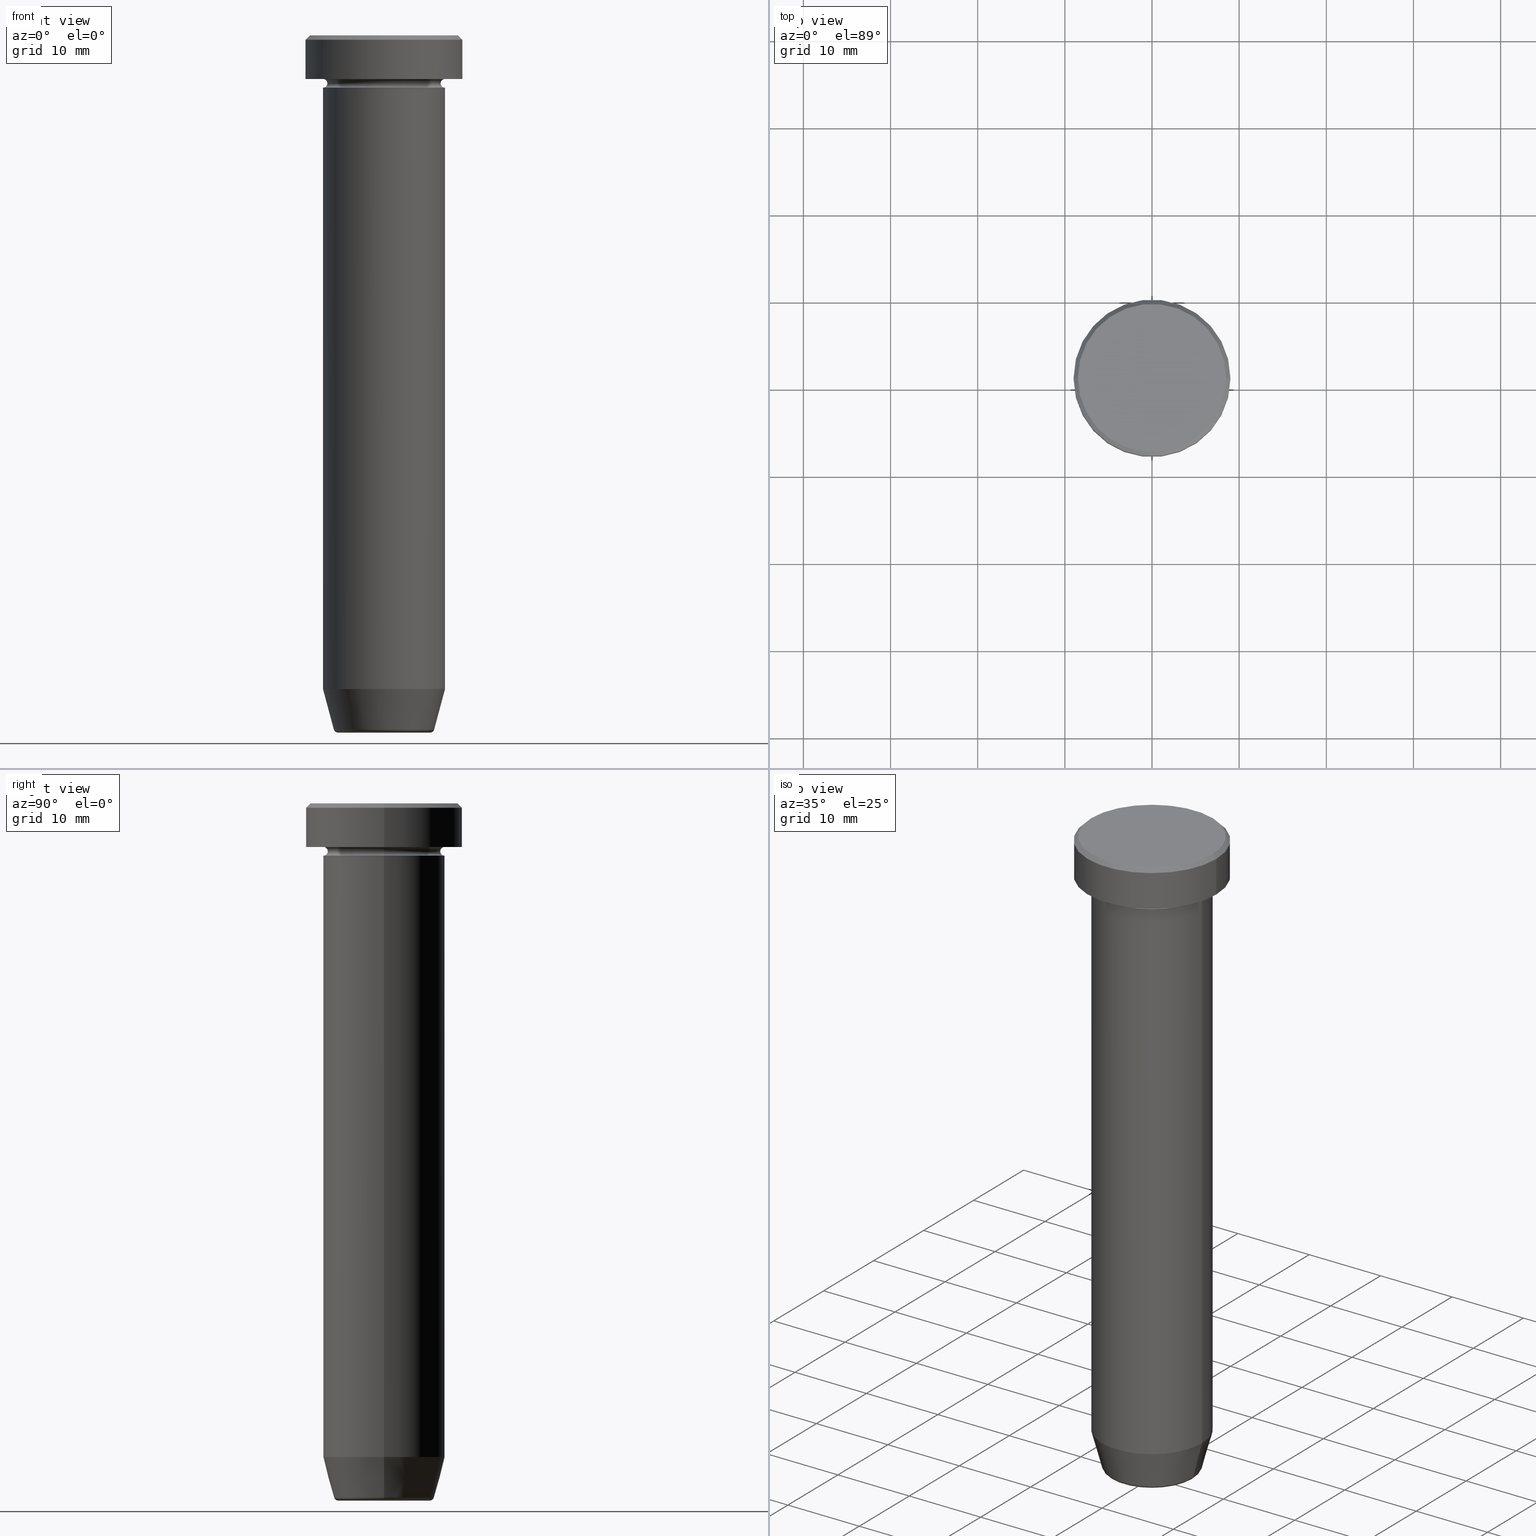
[diagram: canonical four-view strip — front | top / right | iso, engineering-drawing reading convention]
A machine part, canonical four-view strip (front | top / right | iso — engineering-drawing reading convention). The complete STEP part file that produces these views, byte-faithful:
ISO-10303-21;
HEADER;
FILE_DESCRIPTION (( 'STEP AP203' ),
    '1' );
FILE_NAME ('fd89.STEP',
    '2024-01-02T23:13:30',
    ( '' ),
    ( '' ),
    'SwSTEP 2.0',
    'SolidWorks 2019',
    '' );
FILE_SCHEMA (( 'CONFIG_CONTROL_DESIGN' ));
ENDSEC;

DATA;
#1 = CYLINDRICAL_SURFACE ( 'NONE', #584, 7.000000000000000000 ) ;
#2 = ORIENTED_EDGE ( 'NONE', *, *, #304, .F. ) ;
#3 = DIRECTION ( 'NONE',  ( 1.000000000000000000, 0.000000000000000000, 0.000000000000000000 ) ) ;
#4 = DIRECTION ( 'NONE',  ( 0.000000000000000000, 0.000000000000000000, -1.000000000000000000 ) ) ;
#5 = CIRCLE ( 'NONE', #352, 5.276590543854903004 ) ;
#6 = CARTESIAN_POINT ( 'NONE',  ( -9.000000000000000000, 1.102182119232617714E-15, -0.5000000000000023315 ) ) ;
#7 = VECTOR ( 'NONE', #334, 1000.000000000000000 ) ;
#8 = DATE_AND_TIME ( #376, #502 ) ;
#9 = DIRECTION ( 'NONE',  ( 0.000000000000000000, 0.000000000000000000, -1.000000000000000000 ) ) ;
#10 = VERTEX_POINT ( 'NONE', #6 ) ;
#11 = DESIGN_CONTEXT ( 'detailed design', #504, 'design' ) ;
#12 = CARTESIAN_POINT ( 'NONE',  ( 0.000000000000000000, 0.000000000000000000, -79.62940952255127058 ) ) ;
#13 = ORIENTED_EDGE ( 'NONE', *, *, #123, .F. ) ;
#14 = CALENDAR_DATE ( 2024, 3, 1 ) ;
#15 = FACE_OUTER_BOUND ( 'NONE', #245, .T. ) ;
#16 = ORIENTED_EDGE ( 'NONE', *, *, #512, .F. ) ;
#17 = CARTESIAN_POINT ( 'NONE',  ( 0.000000000000000000, 0.000000000000000000, -6.000000000000000000 ) ) ;
#18 = AXIS2_PLACEMENT_3D ( 'NONE', #34, #161, #486 ) ;
#19 = AXIS2_PLACEMENT_3D ( 'NONE', #429, #476, #383 ) ;
#20 = CARTESIAN_POINT ( 'NONE',  ( 0.000000000000000000, 0.000000000000000000, -80.00000000000000000 ) ) ;
#21 = CARTESIAN_POINT ( 'NONE',  ( -7.000000000000000000, 8.572527594031473190E-16, -20.00000000000000000 ) ) ;
#22 = CARTESIAN_POINT ( 'NONE',  ( -5.759553456999437770, 7.812973149831955717E-16, -79.62940952255127058 ) ) ;
#23 = VERTEX_POINT ( 'NONE', #236 ) ;
#24 = ADVANCED_FACE ( 'NONE', ( #182 ), #1, .T. ) ;
#25 = CIRCLE ( 'NONE', #556, 5.759553456999437770 ) ;
#26 = CC_DESIGN_APPROVAL ( #311, ( #150 ) ) ;
#27 = DATE_AND_TIME ( #266, #357 ) ;
#28 = PERSON ( 'NEUR�EN�', 'NEUR�EN�', 'NEUR�EN�', ('NEUR�EN�'), ('NEUR�EN�'), ('NEUR�EN�') ) ;
#29 = EDGE_CURVE ( 'NONE', #141, #203, #477, .T. ) ;
#30 = PERSON_AND_ORGANIZATION ( #28, #296 ) ;
#31 = TOROIDAL_SURFACE ( 'NONE', #207, 7.000000000000000888, 0.5000000000000000000 ) ;
#32 = ADVANCED_FACE ( 'NONE', ( #113 ), #57, .T. ) ;
#33 = DIRECTION ( 'NONE',  ( 0.000000000000000000, 0.000000000000000000, -1.000000000000000000 ) ) ;
#34 = CARTESIAN_POINT ( 'NONE',  ( 0.000000000000000000, 3.673940397442059178E-15, -80.00000000000000000 ) ) ;
#35 = EDGE_LOOP ( 'NONE', ( #157, #473, #569, #564 ) ) ;
#36 = EDGE_LOOP ( 'NONE', ( #16, #149, #360, #342 ) ) ;
#37 = FACE_OUTER_BOUND ( 'NONE', #200, .T. ) ;
#38 = CARTESIAN_POINT ( 'NONE',  ( -9.000000000000000000, 1.102182119232617714E-15, 0.000000000000000000 ) ) ;
#39 = EDGE_LOOP ( 'NONE', ( #310, #87, #389, #344 ) ) ;
#40 = PLANE ( 'NONE',  #346 ) ;
#41 = CARTESIAN_POINT ( 'NONE',  ( 0.000000000000000000, -3.469446951953614189E-15, -20.00000000000000000 ) ) ;
#42 = ORIENTED_EDGE ( 'NONE', *, *, #578, .T. ) ;
#43 = DIRECTION ( 'NONE',  ( 1.224646799147353207E-16, 1.000000000000000000, 0.000000000000000000 ) ) ;
#44 = CALENDAR_DATE ( 2024, 3, 1 ) ;
#45 = EDGE_CURVE ( 'NONE', #203, #368, #566, .T. ) ;
#46 = DIRECTION ( 'NONE',  ( 1.000000000000000000, 0.000000000000000000, 0.000000000000000000 ) ) ;
#47 = AXIS2_PLACEMENT_3D ( 'NONE', #523, #112, #480 ) ;
#48 = CIRCLE ( 'NONE', #462, 7.000000000000000000 ) ;
#49 = DIRECTION ( 'NONE',  ( -0.000000000000000000, -0.000000000000000000, 1.000000000000000000 ) ) ;
#50 = ORIENTED_EDGE ( 'NONE', *, *, #385, .F. ) ;
#51 = CARTESIAN_POINT ( 'NONE',  ( 0.000000000000000000, 0.000000000000000000, -20.00000000000000000 ) ) ;
#52 = COORDINATED_UNIVERSAL_TIME_OFFSET ( 1, 0, .AHEAD. ) ;
#53 = CARTESIAN_POINT ( 'NONE',  ( 0.000000000000000000, 0.000000000000000000, -20.00000000000000000 ) ) ;
#54 = ADVANCED_FACE ( 'NONE', ( #392 ), #436, .F. ) ;
#55 = DIRECTION ( 'NONE',  ( 0.000000000000000000, -1.000000000000000000, 0.000000000000000000 ) ) ;
#56 = DIRECTION ( 'NONE',  ( -0.000000000000000000, -0.000000000000000000, 1.000000000000000000 ) ) ;
#57 = CONICAL_SURFACE ( 'NONE', #126, 5.660254037844383745, 0.2617993877991497409 ) ;
#58 = VECTOR ( 'NONE', #453, 1000.000000000000000 ) ;
#59 = DIRECTION ( 'NONE',  ( -0.000000000000000000, -1.000000000000000000, -0.000000000000000000 ) ) ;
#60 = VERTEX_POINT ( 'NONE', #22 ) ;
#61 = DIRECTION ( 'NONE',  ( -1.000000000000000000, 0.000000000000000000, 0.000000000000000000 ) ) ;
#62 = ORIENTED_EDGE ( 'NONE', *, *, #448, .F. ) ;
#63 = PERSON_AND_ORGANIZATION ( #28, #296 ) ;
#64 = EDGE_CURVE ( 'NONE', #89, #401, #191, .T. ) ;
#65 = ORIENTED_EDGE ( 'NONE', *, *, #474, .F. ) ;
#66 = DIRECTION ( 'NONE',  ( 1.000000000000000000, 0.000000000000000000, 0.000000000000000000 ) ) ;
#67 = UNCERTAINTY_MEASURE_WITH_UNIT (LENGTH_MEASURE( 1.000000000000000082E-05 ), #447, 'distance_accuracy_value', 'NONE');
#68 = EDGE_LOOP ( 'NONE', ( #320, #42, #13, #588 ) ) ;
#69 = DIRECTION ( 'NONE',  ( -0.000000000000000000, -0.000000000000000000, 1.000000000000000000 ) ) ;
#70 = ADVANCED_FACE ( 'NONE', ( #106 ), #229, .F. ) ;
#71 = CARTESIAN_POINT ( 'NONE',  ( -7.000000000000000888, 0.000000000000000000, -5.500000000000000000 ) ) ;
#72 = ORIENTED_EDGE ( 'NONE', *, *, #246, .T. ) ;
#73 = AXIS2_PLACEMENT_3D ( 'NONE', #211, #340, #513 ) ;
#74 = EDGE_CURVE ( 'NONE', #456, #368, #103, .T. ) ;
#75 = DIRECTION ( 'NONE',  ( -1.000000000000000000, 0.000000000000000000, 0.000000000000000000 ) ) ;
#76 = AXIS2_PLACEMENT_3D ( 'NONE', #434, #536, #78 ) ;
#77 = CIRCLE ( 'NONE', #117, 6.500000000000000888 ) ;
#78 = DIRECTION ( 'NONE',  ( 1.000000000000000000, 0.000000000000000000, 0.000000000000000000 ) ) ;
#79 = COORDINATED_UNIVERSAL_TIME_OFFSET ( 1, 0, .AHEAD. ) ;
#80 = DATE_TIME_ROLE ( 'creation_date' ) ;
#81 = AXIS2_PLACEMENT_3D ( 'NONE', #500, #288, #61 ) ;
#82 = ORIENTED_EDGE ( 'NONE', *, *, #474, .T. ) ;
#83 = CARTESIAN_POINT ( 'NONE',  ( 5.276590543854903004, 0.000000000000000000, -80.00000000000000000 ) ) ;
#84 = DIRECTION ( 'NONE',  ( 1.000000000000000000, 0.000000000000000000, 0.000000000000000000 ) ) ;
#85 = ORIENTED_EDGE ( 'NONE', *, *, #385, .T. ) ;
#86 = ADVANCED_FACE ( 'NONE', ( #372 ), #305, .T. ) ;
#87 = ORIENTED_EDGE ( 'NONE', *, *, #512, .T. ) ;
#88 = DIRECTION ( 'NONE',  ( 1.000000000000000000, 0.000000000000000000, 0.000000000000000000 ) ) ;
#89 = VERTEX_POINT ( 'NONE', #240 ) ;
#90 = DIRECTION ( 'NONE',  ( 1.000000000000000000, 0.000000000000000000, 0.000000000000000000 ) ) ;
#91 = FACE_OUTER_BOUND ( 'NONE', #209, .T. ) ;
#92 = DIRECTION ( 'NONE',  ( 1.000000000000000000, 0.000000000000000000, 0.000000000000000000 ) ) ;
#93 = AXIS2_PLACEMENT_3D ( 'NONE', #269, #131, #408 ) ;
#94 = CC_DESIGN_APPROVAL ( #589, ( #364 ) ) ;
#95 = APPROVAL_PERSON_ORGANIZATION ( #418, #589, #371 ) ;
#96 = FACE_BOUND ( 'NONE', #548, .T. ) ;
#97 = DIRECTION ( 'NONE',  ( -0.2588190451025210170, 3.169619151431768639E-17, 0.9659258262890680902 ) ) ;
#98 = CARTESIAN_POINT ( 'NONE',  ( 7.000000000000000888, 8.572527594031474176E-16, -4.999999999999999112 ) ) ;
#99 = CARTESIAN_POINT ( 'NONE',  ( 0.000000000000000000, 0.000000000000000000, 0.000000000000000000 ) ) ;
#100 = EDGE_CURVE ( 'NONE', #302, #204, #403, .T. ) ;
#101 = DIRECTION ( 'NONE',  ( -0.000000000000000000, -0.000000000000000000, 1.000000000000000000 ) ) ;
#102 = EDGE_CURVE ( 'NONE', #395, #345, #593, .T. ) ;
#103 = LINE ( 'NONE', #367, #279 ) ;
#104 = CARTESIAN_POINT ( 'NONE',  ( 7.000000000000000000, 0.000000000000000000, -75.00000000000000000 ) ) ;
#105 = COORDINATED_UNIVERSAL_TIME_OFFSET ( 1, 0, .AHEAD. ) ;
#106 = FACE_OUTER_BOUND ( 'NONE', #520, .T. ) ;
#107 = CIRCLE ( 'NONE', #219, 9.000000000000000000 ) ;
#108 = ORIENTED_EDGE ( 'NONE', *, *, #45, .T. ) ;
#109 = ORIENTED_EDGE ( 'NONE', *, *, #246, .F. ) ;
#110 = CC_DESIGN_PERSON_AND_ORGANIZATION_ASSIGNMENT ( #406, #459, ( #521 ) ) ;
#111 = CARTESIAN_POINT ( 'NONE',  ( 0.000000000000000000, 0.000000000000000000, -5.000000000000000000 ) ) ;
#112 = DIRECTION ( 'NONE',  ( -0.000000000000000000, -0.000000000000000000, 1.000000000000000000 ) ) ;
#113 = FACE_OUTER_BOUND ( 'NONE', #330, .T. ) ;
#114 = CLOSED_SHELL ( 'NONE', ( #538, #54, #451, #24, #175, #599, #422, #241, #525, #532, #163, #70, #487 ) ) ;
#115 = CIRCLE ( 'NONE', #93, 7.000000000000000000 ) ;
#116 = ORIENTED_EDGE ( 'NONE', *, *, #196, .T. ) ;
#117 = AXIS2_PLACEMENT_3D ( 'NONE', #365, #546, #265 ) ;
#118 = DIRECTION ( 'NONE',  ( -0.000000000000000000, -0.000000000000000000, 1.000000000000000000 ) ) ;
#119 = ORIENTED_EDGE ( 'NONE', *, *, #29, .F. ) ;
#120 = AXIS2_PLACEMENT_3D ( 'NONE', #457, #540, #273 ) ;
#121 = LOCAL_TIME ( 0, 13, 30.00000000000000000, #449 ) ;
#122 = PLANE ( 'NONE',  #481 ) ;
#123 = EDGE_CURVE ( 'NONE', #345, #527, #443, .T. ) ;
#124 = DIRECTION ( 'NONE',  ( -1.000000000000000000, 0.000000000000000000, -0.000000000000000000 ) ) ;
#125 = CARTESIAN_POINT ( 'NONE',  ( -5.660254037844383745, 6.931811989807006322E-16, -80.00000000000000000 ) ) ;
#126 = AXIS2_PLACEMENT_3D ( 'NONE', #20, #394, #66 ) ;
#127 = DATE_AND_TIME ( #542, #255 ) ;
#128 = TOROIDAL_SURFACE ( 'NONE', #178, 7.000000000000000888, 0.5000000000000000000 ) ;
#129 = AXIS2_PLACEMENT_3D ( 'NONE', #198, #382, #563 ) ;
#130 = ORIENTED_EDGE ( 'NONE', *, *, #491, .T. ) ;
#131 = DIRECTION ( 'NONE',  ( -0.000000000000000000, -0.000000000000000000, 1.000000000000000000 ) ) ;
#132 = DIRECTION ( 'NONE',  ( -1.000000000000000000, 0.000000000000000000, -0.000000000000000000 ) ) ;
#133 = CARTESIAN_POINT ( 'NONE',  ( 0.000000000000000000, 0.000000000000000000, -0.5000000000000023315 ) ) ;
#134 = ORIENTED_EDGE ( 'NONE', *, *, #100, .T. ) ;
#135 = DIRECTION ( 'NONE',  ( 1.000000000000000000, 0.000000000000000000, 0.000000000000000000 ) ) ;
#136 = DIRECTION ( 'NONE',  ( -0.000000000000000000, -0.000000000000000000, 1.000000000000000000 ) ) ;
#137 = EDGE_CURVE ( 'NONE', #426, #439, #184, .T. ) ;
#138 = FACE_OUTER_BOUND ( 'NONE', #36, .T. ) ;
#139 = CARTESIAN_POINT ( 'NONE',  ( 7.000000000000000000, 0.000000000000000000, -20.00000000000000000 ) ) ;
#140 = AXIS2_PLACEMENT_3D ( 'NONE', #547, #101, #425 ) ;
#141 = VERTEX_POINT ( 'NONE', #139 ) ;
#142 = PLANE ( 'NONE',  #356 ) ;
#143 = EDGE_CURVE ( 'NONE', #199, #543, #321, .T. ) ;
#144 = CARTESIAN_POINT ( 'NONE',  ( -5.276590543854903004, 6.461959719943098517E-16, -79.50000000000000000 ) ) ;
#145 = EDGE_LOOP ( 'NONE', ( #155, #358, #562, #65 ) ) ;
#146 = DIRECTION ( 'NONE',  ( -0.000000000000000000, -0.000000000000000000, 1.000000000000000000 ) ) ;
#147 = ORIENTED_EDGE ( 'NONE', *, *, #594, .T. ) ;
#148 = APPROVAL_DATE_TIME ( #475, #405 ) ;
#149 = ORIENTED_EDGE ( 'NONE', *, *, #143, .F. ) ;
#150 = PRODUCT_DEFINITION ( 'NEZN�M�', '', #364, #11 ) ;
#151 = VECTOR ( 'NONE', #597, 1000.000000000000000 ) ;
#152 = CIRCLE ( 'NONE', #579, 0.5000000000000004441 ) ;
#153 = DIRECTION ( 'NONE',  ( 1.000000000000000000, 0.000000000000000000, 0.000000000000000000 ) ) ;
#154 = DIRECTION ( 'NONE',  ( -1.000000000000000000, 1.224646799147351482E-16, 0.000000000000000000 ) ) ;
#155 = ORIENTED_EDGE ( 'NONE', *, *, #578, .F. ) ;
#156 = CARTESIAN_POINT ( 'NONE',  ( 0.000000000000000000, 0.000000000000000000, -5.500000000000000000 ) ) ;
#157 = ORIENTED_EDGE ( 'NONE', *, *, #327, .T. ) ;
#158 = DIRECTION ( 'NONE',  ( -0.000000000000000000, -0.000000000000000000, 1.000000000000000000 ) ) ;
#159 = VERTEX_POINT ( 'NONE', #468 ) ;
#160 = AXIS2_PLACEMENT_3D ( 'NONE', #531, #580, #410 ) ;
#161 = DIRECTION ( 'NONE',  ( 0.000000000000000000, -0.000000000000000000, 1.000000000000000000 ) ) ;
#162 = ORIENTED_EDGE ( 'NONE', *, *, #170, .T. ) ;
#163 = ADVANCED_FACE ( 'NONE', ( #511 ), #128, .F. ) ;
#164 = EDGE_CURVE ( 'NONE', #543, #199, #595, .T. ) ;
#165 = AXIS2_PLACEMENT_3D ( 'NONE', #550, #49, #90 ) ;
#166 = CC_DESIGN_APPROVAL ( #405, ( #519 ) ) ;
#167 = CARTESIAN_POINT ( 'NONE',  ( 0.000000000000000000, 0.000000000000000000, 0.000000000000000000 ) ) ;
#168 = AXIS2_PLACEMENT_3D ( 'NONE', #156, #348, #75 ) ;
#169 = ORIENTED_EDGE ( 'NONE', *, *, #409, .T. ) ;
#170 = EDGE_CURVE ( 'NONE', #426, #591, #306, .T. ) ;
#171 =( NAMED_UNIT ( * ) SI_UNIT ( $, .STERADIAN. ) SOLID_ANGLE_UNIT ( ) );
#172 = ORIENTED_EDGE ( 'NONE', *, *, #391, .F. ) ;
#173 = DIRECTION ( 'NONE',  ( 0.2588190451025210170, 0.000000000000000000, 0.9659258262890680902 ) ) ;
#174 = PERSON_AND_ORGANIZATION ( #28, #296 ) ;
#175 = ADVANCED_FACE ( 'NONE', ( #179 ), #190, .T. ) ;
#176 = ORIENTED_EDGE ( 'NONE', *, *, #507, .T. ) ;
#177 =( NAMED_UNIT ( * ) PLANE_ANGLE_UNIT ( ) SI_UNIT ( $, .RADIAN. ) );
#178 = AXIS2_PLACEMENT_3D ( 'NONE', #378, #559, #501 ) ;
#179 = FACE_OUTER_BOUND ( 'NONE', #397, .T. ) ;
#180 = CIRCLE ( 'NONE', #160, 0.5000000000000004441 ) ;
#181 = LINE ( 'NONE', #412, #7 ) ;
#182 = FACE_OUTER_BOUND ( 'NONE', #257, .T. ) ;
#183 = PERSON_AND_ORGANIZATION ( #28, #296 ) ;
#184 = LINE ( 'NONE', #460, #284 ) ;
#185 = FACE_OUTER_BOUND ( 'NONE', #39, .T. ) ;
#186 = EDGE_CURVE ( 'NONE', #204, #302, #5, .T. ) ;
#187 = ORIENTED_EDGE ( 'NONE', *, *, #259, .F. ) ;
#188 = CARTESIAN_POINT ( 'NONE',  ( -8.500000000000000000, 0.000000000000000000, 0.000000000000000000 ) ) ;
#189 = PRODUCT_DEFINITION_SHAPE ( 'NONE', 'NONE',  #150 ) ;
#190 = CYLINDRICAL_SURFACE ( 'NONE', #140, 9.000000000000000000 ) ;
#191 = CIRCLE ( 'NONE', #73, 0.5000000000000004441 ) ;
#192 = CIRCLE ( 'NONE', #295, 7.000000000000000000 ) ;
#193 = DIRECTION ( 'NONE',  ( -1.000000000000000000, 0.000000000000000000, 0.000000000000000000 ) ) ;
#194 = CIRCLE ( 'NONE', #424, 7.000000000000000888 ) ;
#195 = PERSON_AND_ORGANIZATION ( #28, #296 ) ;
#196 = EDGE_CURVE ( 'NONE', #439, #10, #489, .T. ) ;
#197 = VERTEX_POINT ( 'NONE', #285 ) ;
#198 = CARTESIAN_POINT ( 'NONE',  ( 0.000000000000000000, 0.000000000000000000, 0.000000000000000000 ) ) ;
#199 = VERTEX_POINT ( 'NONE', #329 ) ;
#200 = EDGE_LOOP ( 'NONE', ( #431, #539, #249, #514 ) ) ;
#201 = CARTESIAN_POINT ( 'NONE',  ( -7.000000000000000000, 8.572527594031473190E-16, -20.00000000000000000 ) ) ;
#202 = DIRECTION ( 'NONE',  ( -0.000000000000000000, -0.000000000000000000, 1.000000000000000000 ) ) ;
#203 = VERTEX_POINT ( 'NONE', #277 ) ;
#204 = VERTEX_POINT ( 'NONE', #419 ) ;
#205 = AXIS2_PLACEMENT_3D ( 'NONE', #293, #470, #297 ) ;
#206 = DIRECTION ( 'NONE',  ( 1.000000000000000000, 0.000000000000000000, 0.000000000000000000 ) ) ;
#207 = AXIS2_PLACEMENT_3D ( 'NONE', #440, #158, #388 ) ;
#208 = CARTESIAN_POINT ( 'NONE',  ( -7.000000000000000000, 8.572527594031473190E-16, -75.00000000000000000 ) ) ;
#209 = EDGE_LOOP ( 'NONE', ( #494, #455 ) ) ;
#210 = CARTESIAN_POINT ( 'NONE',  ( 0.000000000000000000, 0.000000000000000000, -20.00000000000000000 ) ) ;
#211 = CARTESIAN_POINT ( 'NONE',  ( 7.000000000000000888, 8.572527594031474176E-16, -5.500000000000000000 ) ) ;
#212 = PRODUCT_RELATED_PRODUCT_CATEGORY ( 'detail', '', ( #521 ) ) ;
#213 = TOROIDAL_SURFACE ( 'NONE', #19, 5.276590543854903004, 0.5000000000000000000 ) ;
#214 = AXIS2_PLACEMENT_3D ( 'NONE', #167, #497, #274 ) ;
#215 = ADVANCED_FACE ( 'NONE', ( #573 ), #213, .T. ) ;
#216 = EDGE_LOOP ( 'NONE', ( #62, #411, #176, #108 ) ) ;
#217 = PERSON_AND_ORGANIZATION_ROLE ( 'creator' ) ;
#218 = AXIS2_PLACEMENT_3D ( 'NONE', #133, #552, #92 ) ;
#219 = AXIS2_PLACEMENT_3D ( 'NONE', #582, #413, #84 ) ;
#220 = CARTESIAN_POINT ( 'NONE',  ( 0.000000000000000000, 7.000000000000000000, -20.00000000000000000 ) ) ;
#221 = LINE ( 'NONE', #528, #58 ) ;
#222 = CARTESIAN_POINT ( 'NONE',  ( 0.000000000000000000, 9.000000000000000000, -5.000000000000000000 ) ) ;
#223 = APPLICATION_PROTOCOL_DEFINITION ( 'international standard', 'config_control_design', 1994, #224 ) ;
#224 = APPLICATION_CONTEXT ( 'configuration controlled 3d designs of mechanical parts and assemblies' ) ;
#225 = ORIENTED_EDGE ( 'NONE', *, *, #586, .T. ) ;
#226 = APPROVAL_STATUS ( 'not_yet_approved' ) ;
#227 = CARTESIAN_POINT ( 'NONE',  ( 0.000000000000000000, 0.000000000000000000, -5.000000000000000000 ) ) ;
#228 = ORIENTED_EDGE ( 'NONE', *, *, #186, .T. ) ;
#229 = TOROIDAL_SURFACE ( 'NONE', #205, 7.000000000000000888, 0.5000000000000000000 ) ;
#230 = DIRECTION ( 'NONE',  ( 1.000000000000000000, 0.000000000000000000, 0.000000000000000000 ) ) ;
#231 = LINE ( 'NONE', #267, #307 ) ;
#232 = DATE_AND_TIME ( #44, #121 ) ;
#233 = AXIS2_PLACEMENT_3D ( 'NONE', #526, #69, #252 ) ;
#234 = CARTESIAN_POINT ( 'NONE',  ( 0.000000000000000000, 0.000000000000000000, -80.00000000000000000 ) ) ;
#235 = AXIS2_PLACEMENT_3D ( 'NONE', #483, #386, #331 ) ;
#236 = CARTESIAN_POINT ( 'NONE',  ( -7.000000000000000888, 0.000000000000000000, -4.999999999999999112 ) ) ;
#237 = DIRECTION ( 'NONE',  ( 1.000000000000000000, 0.000000000000000000, 0.000000000000000000 ) ) ;
#238 = CYLINDRICAL_SURFACE ( 'NONE', #120, 7.000000000000000000 ) ;
#239 = DIRECTION ( 'NONE',  ( 0.000000000000000000, 0.000000000000000000, -1.000000000000000000 ) ) ;
#240 = CARTESIAN_POINT ( 'NONE',  ( 6.500000000000000888, 0.000000000000000000, -5.500000000000000000 ) ) ;
#241 = ADVANCED_FACE ( 'NONE', ( #15 ), #441, .T. ) ;
#242 = DIRECTION ( 'NONE',  ( 0.000000000000000000, 0.000000000000000000, -1.000000000000000000 ) ) ;
#243 = ORIENTED_EDGE ( 'NONE', *, *, #529, .F. ) ;
#244 = AXIS2_PLACEMENT_3D ( 'NONE', #541, #43, #581 ) ;
#245 = EDGE_LOOP ( 'NONE', ( #551, #130, #271, #116 ) ) ;
#246 = EDGE_CURVE ( 'NONE', #456, #141, #404, .T. ) ;
#247 = ORIENTED_EDGE ( 'NONE', *, *, #123, .T. ) ;
#248 = CYLINDRICAL_SURFACE ( 'NONE', #235, 7.000000000000000000 ) ;
#249 = ORIENTED_EDGE ( 'NONE', *, *, #327, .F. ) ;
#250 = EDGE_LOOP ( 'NONE', ( #134, #228 ) ) ;
#251 = CARTESIAN_POINT ( 'NONE',  ( 5.276590543854903004, 0.000000000000000000, -79.50000000000000000 ) ) ;
#252 = DIRECTION ( 'NONE',  ( 1.000000000000000000, 0.000000000000000000, 0.000000000000000000 ) ) ;
#253 = ADVANCED_FACE ( 'NONE', ( #359 ), #316, .F. ) ;
#254 = AXIS2_PLACEMENT_3D ( 'NONE', #251, #55, #242 ) ;
#255 = LOCAL_TIME ( 0, 13, 30.00000000000000000, #493 ) ;
#256 = CARTESIAN_POINT ( 'NONE',  ( 7.000000000000000000, 0.000000000000000000, 0.000000000000000000 ) ) ;
#257 = EDGE_LOOP ( 'NONE', ( #260, #522, #516, #119 ) ) ;
#258 = DIRECTION ( 'NONE',  ( -0.000000000000000000, -0.000000000000000000, 1.000000000000000000 ) ) ;
#259 = EDGE_CURVE ( 'NONE', #354, #395, #415, .T. ) ;
#260 = ORIENTED_EDGE ( 'NONE', *, *, #400, .T. ) ;
#261 = DIRECTION ( 'NONE',  ( 1.224646799147353207E-16, 1.000000000000000000, 0.000000000000000000 ) ) ;
#262 = CARTESIAN_POINT ( 'NONE',  ( 0.000000000000000000, 0.000000000000000000, -75.00000000000000000 ) ) ;
#263 = AXIS2_PLACEMENT_3D ( 'NONE', #495, #339, #135 ) ;
#264 = APPROVAL_PERSON_ORGANIZATION ( #195, #405, #518 ) ;
#265 = DIRECTION ( 'NONE',  ( 1.000000000000000000, 0.000000000000000000, 0.000000000000000000 ) ) ;
#266 = CALENDAR_DATE ( 2024, 3, 1 ) ;
#267 = CARTESIAN_POINT ( 'NONE',  ( 5.660254037844383745, 0.000000000000000000, -80.00000000000000000 ) ) ;
#268 = APPROVAL_DATE_TIME ( #27, #589 ) ;
#269 = CARTESIAN_POINT ( 'NONE',  ( 0.000000000000000000, 0.000000000000000000, -6.000000000000000000 ) ) ;
#270 = CONICAL_SURFACE ( 'NONE', #530, 8.500000000000000000, 0.7853981633974447263 ) ;
#271 = ORIENTED_EDGE ( 'NONE', *, *, #137, .T. ) ;
#272 = CC_DESIGN_PERSON_AND_ORGANIZATION_ASSIGNMENT ( #30, #217, ( #364 ) ) ;
#273 = DIRECTION ( 'NONE',  ( 1.000000000000000000, 0.000000000000000000, 0.000000000000000000 ) ) ;
#274 = DIRECTION ( 'NONE',  ( 1.000000000000000000, 0.000000000000000000, 0.000000000000000000 ) ) ;
#275 = DIRECTION ( 'NONE',  ( -0.000000000000000000, -0.000000000000000000, 1.000000000000000000 ) ) ;
#276 = DIRECTION ( 'NONE',  ( -0.000000000000000000, -0.000000000000000000, 1.000000000000000000 ) ) ;
#277 = CARTESIAN_POINT ( 'NONE',  ( 7.000000000000000000, 0.000000000000000000, -6.000000000000000000 ) ) ;
#278 = ORIENTED_EDGE ( 'NONE', *, *, #488, .F. ) ;
#279 = VECTOR ( 'NONE', #467, 1000.000000000000000 ) ;
#280 = DIRECTION ( 'NONE',  ( -0.000000000000000000, -0.000000000000000000, 1.000000000000000000 ) ) ;
#281 = ORIENTED_EDGE ( 'NONE', *, *, #137, .F. ) ;
#282 = AXIS2_PLACEMENT_3D ( 'NONE', #336, #275, #380 ) ;
#283 = ADVANCED_FACE ( 'NONE', ( #338 ), #238, .T. ) ;
#284 = VECTOR ( 'NONE', #291, 1000.000000000000000 ) ;
#285 = CARTESIAN_POINT ( 'NONE',  ( -6.500000000000000888, 8.266365894244635319E-16, -5.500000000000000000 ) ) ;
#286 = CIRCLE ( 'NONE', #534, 9.000000000000000000 ) ;
#287 = ADVANCED_BREP_SHAPE_REPRESENTATION ( 'fd89', ( #446, #445, #214 ), #390 ) ;
#288 = DIRECTION ( 'NONE',  ( -0.000000000000000000, -0.000000000000000000, 1.000000000000000000 ) ) ;
#289 = DIRECTION ( 'NONE',  ( -0.000000000000000000, -0.000000000000000000, 1.000000000000000000 ) ) ;
#290 = ADVANCED_FACE ( 'NONE', ( #421 ), #142, .F. ) ;
#291 = DIRECTION ( 'NONE',  ( -0.000000000000000000, -0.000000000000000000, 1.000000000000000000 ) ) ;
#292 = EDGE_CURVE ( 'NONE', #395, #354, #192, .T. ) ;
#293 = CARTESIAN_POINT ( 'NONE',  ( 0.000000000000000000, 0.000000000000000000, -5.500000000000000000 ) ) ;
#294 = APPROVAL_STATUS ( 'not_yet_approved' ) ;
#295 = AXIS2_PLACEMENT_3D ( 'NONE', #554, #136, #230 ) ;
#296 = ORGANIZATION ( 'NEUR�EN�', 'NEUR�EN�', '' ) ;
#297 = DIRECTION ( 'NONE',  ( -1.000000000000000000, 0.000000000000000000, 0.000000000000000000 ) ) ;
#298 = FACE_OUTER_BOUND ( 'NONE', #387, .T. ) ;
#299 = DIRECTION ( 'NONE',  ( 0.000000000000000000, 0.000000000000000000, -1.000000000000000000 ) ) ;
#300 = EDGE_LOOP ( 'NONE', ( #575, #479 ) ) ;
#301 = SECURITY_CLASSIFICATION_LEVEL ( 'unclassified' ) ;
#302 = VERTEX_POINT ( 'NONE', #83 ) ;
#303 = EDGE_CURVE ( 'NONE', #368, #203, #115, .T. ) ;
#304 = EDGE_CURVE ( 'NONE', #60, #354, #590, .T. ) ;
#305 = CONICAL_SURFACE ( 'NONE', #263, 5.660254037844383745, 0.2617993877991497409 ) ;
#306 = CIRCLE ( 'NONE', #517, 9.000000000000000000 ) ;
#307 = VECTOR ( 'NONE', #173, 1000.000000000000114 ) ;
#308 = ORIENTED_EDGE ( 'NONE', *, *, #507, .F. ) ;
#309 = EDGE_CURVE ( 'NONE', #199, #10, #416, .T. ) ;
#310 = ORIENTED_EDGE ( 'NONE', *, *, #164, .F. ) ;
#311 = APPROVAL ( #226, 'NEUR�EN�' ) ;
#312 = AXIS2_PLACEMENT_3D ( 'NONE', #262, #509, #332 ) ;
#313 = AXIS2_PLACEMENT_3D ( 'NONE', #463, #317, #88 ) ;
#314 = FACE_OUTER_BOUND ( 'NONE', #499, .T. ) ;
#315 = PERSON_AND_ORGANIZATION_ROLE ( 'design_supplier' ) ;
#316 = PLANE ( 'NONE',  #18 ) ;
#317 = DIRECTION ( 'NONE',  ( 0.000000000000000000, -0.000000000000000000, 1.000000000000000000 ) ) ;
#318 = DIRECTION ( 'NONE',  ( 0.000000000000000000, 0.000000000000000000, -1.000000000000000000 ) ) ;
#319 = ADVANCED_FACE ( 'NONE', ( #37 ), #435, .T. ) ;
#320 = ORIENTED_EDGE ( 'NONE', *, *, #292, .T. ) ;
#321 = CIRCLE ( 'NONE', #282, 8.500000000000000000 ) ;
#322 = CONICAL_SURFACE ( 'NONE', #129, 8.500000000000000000, 0.7853981633974447263 ) ;
#323 = FACE_OUTER_BOUND ( 'NONE', #433, .T. ) ;
#324 = PERSON_AND_ORGANIZATION_ROLE ( 'creator' ) ;
#325 = CARTESIAN_POINT ( 'NONE',  ( 0.000000000000000000, 0.000000000000000000, -80.00000000000000000 ) ) ;
#326 = ORIENTED_EDGE ( 'NONE', *, *, #303, .T. ) ;
#327 = EDGE_CURVE ( 'NONE', #159, #60, #25, .T. ) ;
#328 = APPROVAL_ROLE ( '' ) ;
#329 = CARTESIAN_POINT ( 'NONE',  ( -8.500000000000000000, 0.000000000000000000, 0.000000000000000000 ) ) ;
#330 = EDGE_LOOP ( 'NONE', ( #2, #585, #568, #187 ) ) ;
#331 = DIRECTION ( 'NONE',  ( 1.000000000000000000, 0.000000000000000000, 0.000000000000000000 ) ) ;
#332 = DIRECTION ( 'NONE',  ( 1.000000000000000000, 0.000000000000000000, 0.000000000000000000 ) ) ;
#333 = CARTESIAN_POINT ( 'NONE',  ( 7.000000000000000000, 0.000000000000000000, 0.000000000000000000 ) ) ;
#334 = DIRECTION ( 'NONE',  ( 0.7071067811865450192, 8.659560562354902043E-17, -0.7071067811865500152 ) ) ;
#335 = DIRECTION ( 'NONE',  ( -0.000000000000000000, -0.000000000000000000, 1.000000000000000000 ) ) ;
#336 = CARTESIAN_POINT ( 'NONE',  ( 0.000000000000000000, 0.000000000000000000, 0.000000000000000000 ) ) ;
#337 = DIRECTION ( 'NONE',  ( 1.000000000000000000, 0.000000000000000000, 0.000000000000000000 ) ) ;
#338 = FACE_OUTER_BOUND ( 'NONE', #145, .T. ) ;
#339 = DIRECTION ( 'NONE',  ( -0.000000000000000000, -0.000000000000000000, 1.000000000000000000 ) ) ;
#340 = DIRECTION ( 'NONE',  ( -1.224646799147353207E-16, 1.000000000000000000, 0.000000000000000000 ) ) ;
#341 = CARTESIAN_POINT ( 'NONE',  ( 7.000000000000000000, 0.000000000000000000, -20.00000000000000000 ) ) ;
#342 = ORIENTED_EDGE ( 'NONE', *, *, #196, .F. ) ;
#343 = CARTESIAN_POINT ( 'NONE',  ( -7.000000000000000000, 8.572527594031473190E-16, -6.000000000000000000 ) ) ;
#344 = ORIENTED_EDGE ( 'NONE', *, *, #309, .F. ) ;
#345 = VERTEX_POINT ( 'NONE', #341 ) ;
#346 = AXIS2_PLACEMENT_3D ( 'NONE', #222, #33, #124 ) ;
#347 = CARTESIAN_POINT ( 'NONE',  ( 0.000000000000000000, 0.000000000000000000, -5.500000000000000000 ) ) ;
#348 = DIRECTION ( 'NONE',  ( 0.000000000000000000, 0.000000000000000000, -1.000000000000000000 ) ) ;
#349 = DIRECTION ( 'NONE',  ( 1.000000000000000000, 0.000000000000000000, 0.000000000000000000 ) ) ;
#350 = CC_DESIGN_PERSON_AND_ORGANIZATION_ASSIGNMENT ( #63, #506, ( #519 ) ) ;
#351 = ORIENTED_EDGE ( 'NONE', *, *, #529, .T. ) ;
#352 = AXIS2_PLACEMENT_3D ( 'NONE', #234, #9, #561 ) ;
#353 = CIRCLE ( 'NONE', #490, 6.500000000000000888 ) ;
#354 = VERTEX_POINT ( 'NONE', #208 ) ;
#355 = EDGE_CURVE ( 'NONE', #302, #159, #398, .T. ) ;
#356 = AXIS2_PLACEMENT_3D ( 'NONE', #41, #545, #503 ) ;
#357 = LOCAL_TIME ( 0, 13, 30.00000000000000000, #79 ) ;
#358 = ORIENTED_EDGE ( 'NONE', *, *, #259, .T. ) ;
#359 = FACE_OUTER_BOUND ( 'NONE', #250, .T. ) ;
#360 = ORIENTED_EDGE ( 'NONE', *, *, #309, .T. ) ;
#361 = CARTESIAN_POINT ( 'NONE',  ( 0.000000000000000000, 0.000000000000000000, 0.000000000000000000 ) ) ;
#362 = AXIS2_PLACEMENT_3D ( 'NONE', #12, #202, #510 ) ;
#363 = ORIENTED_EDGE ( 'NONE', *, *, #438, .T. ) ;
#364 = PRODUCT_DEFINITION_FORMATION_WITH_SPECIFIED_SOURCE ( 'LIBOVOLN�', '', #521, .NOT_KNOWN. ) ;
#365 = CARTESIAN_POINT ( 'NONE',  ( 0.000000000000000000, 0.000000000000000000, -5.500000000000000000 ) ) ;
#366 = APPLICATION_PROTOCOL_DEFINITION ( 'international standard', 'config_control_design', 1994, #504 ) ;
#367 = CARTESIAN_POINT ( 'NONE',  ( -7.000000000000000000, 8.572527594031473190E-16, 0.000000000000000000 ) ) ;
#368 = VERTEX_POINT ( 'NONE', #343 ) ;
#369 = CARTESIAN_POINT ( 'NONE',  ( 0.000000000000000000, 0.000000000000000000, -79.62940952255127058 ) ) ;
#370 = CARTESIAN_POINT ( 'NONE',  ( 9.000000000000000000, 0.000000000000000000, -5.000000000000000000 ) ) ;
#371 = APPROVAL_ROLE ( '' ) ;
#372 = FACE_OUTER_BOUND ( 'NONE', #35, .T. ) ;
#373 = DIRECTION ( 'NONE',  ( -0.000000000000000000, -0.000000000000000000, 1.000000000000000000 ) ) ;
#374 = ADVANCED_FACE ( 'NONE', ( #379 ), #560, .T. ) ;
#375 = AXIS2_PLACEMENT_3D ( 'NONE', #53, #498, #237 ) ;
#376 = CALENDAR_DATE ( 2024, 3, 1 ) ;
#377 = CIRCLE ( 'NONE', #81, 7.000000000000000888 ) ;
#378 = CARTESIAN_POINT ( 'NONE',  ( 0.000000000000000000, 0.000000000000000000, -5.500000000000000000 ) ) ;
#379 = FACE_OUTER_BOUND ( 'NONE', #68, .T. ) ;
#380 = DIRECTION ( 'NONE',  ( 1.000000000000000000, 0.000000000000000000, 0.000000000000000000 ) ) ;
#381 = ORIENTED_EDGE ( 'NONE', *, *, #64, .T. ) ;
#382 = DIRECTION ( 'NONE',  ( 0.000000000000000000, 0.000000000000000000, -1.000000000000000000 ) ) ;
#383 = DIRECTION ( 'NONE',  ( 1.000000000000000000, 0.000000000000000000, 0.000000000000000000 ) ) ;
#384 = ORIENTED_EDGE ( 'NONE', *, *, #303, .F. ) ;
#385 = EDGE_CURVE ( 'NONE', #197, #23, #461, .T. ) ;
#386 = DIRECTION ( 'NONE',  ( -0.000000000000000000, -0.000000000000000000, 1.000000000000000000 ) ) ;
#387 = EDGE_LOOP ( 'NONE', ( #571, #72, #469, #384 ) ) ;
#388 = DIRECTION ( 'NONE',  ( 1.000000000000000000, 0.000000000000000000, 0.000000000000000000 ) ) ;
#389 = ORIENTED_EDGE ( 'NONE', *, *, #586, .F. ) ;
#390 =( GEOMETRIC_REPRESENTATION_CONTEXT ( 3 ) GLOBAL_UNCERTAINTY_ASSIGNED_CONTEXT ( ( #67 ) ) GLOBAL_UNIT_ASSIGNED_CONTEXT ( ( #447, #177, #171 ) ) REPRESENTATION_CONTEXT ( 'NONE', 'WORKASPACE' ) );
#391 = EDGE_CURVE ( 'NONE', #60, #159, #423, .T. ) ;
#392 = FACE_OUTER_BOUND ( 'NONE', #496, .T. ) ;
#393 = CARTESIAN_POINT ( 'NONE',  ( 0.000000000000000000, 0.000000000000000000, -5.000000000000000000 ) ) ;
#394 = DIRECTION ( 'NONE',  ( -0.000000000000000000, -0.000000000000000000, 1.000000000000000000 ) ) ;
#395 = VERTEX_POINT ( 'NONE', #104 ) ;
#396 = CARTESIAN_POINT ( 'NONE',  ( 8.500000000000000000, 1.071565949253933927E-15, 0.000000000000000000 ) ) ;
#397 = EDGE_LOOP ( 'NONE', ( #162, #147, #225, #281 ) ) ;
#398 = CIRCLE ( 'NONE', #254, 0.5000000000000004441 ) ;
#399 = VECTOR ( 'NONE', #537, 1000.000000000000000 ) ;
#400 = EDGE_CURVE ( 'NONE', #141, #456, #48, .T. ) ;
#401 = VERTEX_POINT ( 'NONE', #98 ) ;
#402 = PERSON_AND_ORGANIZATION ( #28, #296 ) ;
#403 = CIRCLE ( 'NONE', #450, 5.276590543854903004 ) ;
#404 = CIRCLE ( 'NONE', #76, 7.000000000000000000 ) ;
#405 = APPROVAL ( #294, 'NEUR�EN�' ) ;
#406 = PERSON_AND_ORGANIZATION ( #28, #296 ) ;
#407 = ORIENTED_EDGE ( 'NONE', *, *, #100, .F. ) ;
#408 = DIRECTION ( 'NONE',  ( 1.000000000000000000, 0.000000000000000000, 0.000000000000000000 ) ) ;
#409 = EDGE_CURVE ( 'NONE', #401, #23, #377, .T. ) ;
#410 = DIRECTION ( 'NONE',  ( 0.000000000000000000, 0.000000000000000000, -1.000000000000000000 ) ) ;
#411 = ORIENTED_EDGE ( 'NONE', *, *, #438, .F. ) ;
#412 = CARTESIAN_POINT ( 'NONE',  ( 8.500000000000000000, 1.040949779275250140E-15, 0.000000000000000000 ) ) ;
#413 = DIRECTION ( 'NONE',  ( 0.000000000000000000, 0.000000000000000000, -1.000000000000000000 ) ) ;
#414 = ORIENTED_EDGE ( 'NONE', *, *, #482, .F. ) ;
#415 = CIRCLE ( 'NONE', #312, 7.000000000000000000 ) ;
#416 = LINE ( 'NONE', #188, #151 ) ;
#417 = AXIS2_PLACEMENT_3D ( 'NONE', #210, #118, #153 ) ;
#418 = PERSON_AND_ORGANIZATION ( #28, #296 ) ;
#419 = CARTESIAN_POINT ( 'NONE',  ( -5.276590543854903004, 6.757689212787765916E-16, -80.00000000000000000 ) ) ;
#420 = DIRECTION ( 'NONE',  ( -0.000000000000000000, -0.000000000000000000, 1.000000000000000000 ) ) ;
#421 = FACE_OUTER_BOUND ( 'NONE', #427, .T. ) ;
#422 = ADVANCED_FACE ( 'NONE', ( #91 ), #465, .T. ) ;
#423 = CIRCLE ( 'NONE', #362, 5.759553456999437770 ) ;
#424 = AXIS2_PLACEMENT_3D ( 'NONE', #111, #373, #555 ) ;
#425 = DIRECTION ( 'NONE',  ( 1.000000000000000000, 0.000000000000000000, 0.000000000000000000 ) ) ;
#426 = VERTEX_POINT ( 'NONE', #370 ) ;
#427 = EDGE_LOOP ( 'NONE', ( #247, #82 ) ) ;
#428 = EDGE_CURVE ( 'NONE', #159, #395, #231, .T. ) ;
#429 = CARTESIAN_POINT ( 'NONE',  ( 0.000000000000000000, 0.000000000000000000, -79.50000000000000000 ) ) ;
#430 = ORIENTED_EDGE ( 'NONE', *, *, #409, .F. ) ;
#431 = ORIENTED_EDGE ( 'NONE', *, *, #186, .F. ) ;
#432 = ORIENTED_EDGE ( 'NONE', *, *, #64, .F. ) ;
#433 = EDGE_LOOP ( 'NONE', ( #243, #524, #326, #308 ) ) ;
#434 = CARTESIAN_POINT ( 'NONE',  ( 0.000000000000000000, 0.000000000000000000, -20.00000000000000000 ) ) ;
#435 = TOROIDAL_SURFACE ( 'NONE', #165, 5.276590543854903004, 0.5000000000000000000 ) ;
#436 = TOROIDAL_SURFACE ( 'NONE', #168, 7.000000000000000888, 0.5000000000000000000 ) ;
#437 = DIRECTION ( 'NONE',  ( -0.000000000000000000, -0.000000000000000000, 1.000000000000000000 ) ) ;
#438 = EDGE_CURVE ( 'NONE', #89, #197, #77, .T. ) ;
#439 = VERTEX_POINT ( 'NONE', #458 ) ;
#440 = CARTESIAN_POINT ( 'NONE',  ( 0.000000000000000000, 0.000000000000000000, -5.500000000000000000 ) ) ;
#441 = CYLINDRICAL_SURFACE ( 'NONE', #233, 9.000000000000000000 ) ;
#442 = CLOSED_SHELL ( 'NONE', ( #319, #86, #374, #290, #283, #32, #253, #215 ) ) ;
#443 = CIRCLE ( 'NONE', #375, 7.000000000000000000 ) ;
#444 = APPROVAL_PERSON_ORGANIZATION ( #174, #311, #328 ) ;
#445 = MANIFOLD_SOLID_BREP ( 'Zaoblit4', #442 ) ;
#446 = MANIFOLD_SOLID_BREP ( 'Zkosen�1', #114 ) ;
#447 =( LENGTH_UNIT ( ) NAMED_UNIT ( * ) SI_UNIT ( .MILLI., .METRE. ) );
#448 = EDGE_CURVE ( 'NONE', #197, #368, #558, .T. ) ;
#449 = COORDINATED_UNIVERSAL_TIME_OFFSET ( 1, 0, .AHEAD. ) ;
#450 = AXIS2_PLACEMENT_3D ( 'NONE', #325, #4, #508 ) ;
#451 = ADVANCED_FACE ( 'NONE', ( #323 ), #31, .F. ) ;
#452 = CIRCLE ( 'NONE', #417, 7.000000000000000000 ) ;
#453 = DIRECTION ( 'NONE',  ( -0.000000000000000000, -0.000000000000000000, 1.000000000000000000 ) ) ;
#454 = EDGE_LOOP ( 'NONE', ( #278, #407, #484, #172 ) ) ;
#455 = ORIENTED_EDGE ( 'NONE', *, *, #164, .T. ) ;
#456 = VERTEX_POINT ( 'NONE', #21 ) ;
#457 = CARTESIAN_POINT ( 'NONE',  ( 0.000000000000000000, 0.000000000000000000, 0.000000000000000000 ) ) ;
#458 = CARTESIAN_POINT ( 'NONE',  ( 9.000000000000000000, 0.000000000000000000, -0.5000000000000023315 ) ) ;
#459 = PERSON_AND_ORGANIZATION_ROLE ( 'design_owner' ) ;
#460 = CARTESIAN_POINT ( 'NONE',  ( 9.000000000000000000, 0.000000000000000000, 0.000000000000000000 ) ) ;
#461 = CIRCLE ( 'NONE', #567, 0.5000000000000004441 ) ;
#462 = AXIS2_PLACEMENT_3D ( 'NONE', #51, #335, #505 ) ;
#463 = CARTESIAN_POINT ( 'NONE',  ( 0.000000000000000000, 0.000000000000000000, 0.000000000000000000 ) ) ;
#464 = CARTESIAN_POINT ( 'NONE',  ( 0.000000000000000000, 0.000000000000000000, 0.000000000000000000 ) ) ;
#465 = PLANE ( 'NONE',  #313 ) ;
#466 = SHAPE_DEFINITION_REPRESENTATION ( #189, #287 ) ;
#467 = DIRECTION ( 'NONE',  ( -0.000000000000000000, -0.000000000000000000, 1.000000000000000000 ) ) ;
#468 = CARTESIAN_POINT ( 'NONE',  ( 5.759553456999437770, 0.000000000000000000, -79.62940952255127058 ) ) ;
#469 = ORIENTED_EDGE ( 'NONE', *, *, #29, .T. ) ;
#470 = DIRECTION ( 'NONE',  ( 0.000000000000000000, 0.000000000000000000, -1.000000000000000000 ) ) ;
#471 = AXIS2_PLACEMENT_3D ( 'NONE', #17, #570, #206 ) ;
#472 = ORIENTED_EDGE ( 'NONE', *, *, #400, .F. ) ;
#473 = ORIENTED_EDGE ( 'NONE', *, *, #304, .T. ) ;
#474 = EDGE_CURVE ( 'NONE', #527, #345, #452, .T. ) ;
#475 = DATE_AND_TIME ( #14, #596 ) ;
#476 = DIRECTION ( 'NONE',  ( -0.000000000000000000, -0.000000000000000000, 1.000000000000000000 ) ) ;
#477 = LINE ( 'NONE', #256, #576 ) ;
#478 = DIRECTION ( 'NONE',  ( -1.000000000000000000, 0.000000000000000000, 0.000000000000000000 ) ) ;
#479 = ORIENTED_EDGE ( 'NONE', *, *, #491, .F. ) ;
#480 = DIRECTION ( 'NONE',  ( 1.000000000000000000, 0.000000000000000000, 0.000000000000000000 ) ) ;
#481 = AXIS2_PLACEMENT_3D ( 'NONE', #220, #318, #132 ) ;
#482 = EDGE_CURVE ( 'NONE', #23, #401, #194, .T. ) ;
#483 = CARTESIAN_POINT ( 'NONE',  ( 0.000000000000000000, 0.000000000000000000, 0.000000000000000000 ) ) ;
#484 = ORIENTED_EDGE ( 'NONE', *, *, #355, .T. ) ;
#485 = CC_DESIGN_DATE_AND_TIME_ASSIGNMENT ( #8, #565, ( #519 ) ) ;
#486 = DIRECTION ( 'NONE',  ( 1.000000000000000000, 0.000000000000000000, 0.000000000000000000 ) ) ;
#487 = ADVANCED_FACE ( 'NONE', ( #138 ), #270, .T. ) ;
#488 = EDGE_CURVE ( 'NONE', #204, #60, #152, .T. ) ;
#489 = CIRCLE ( 'NONE', #218, 9.000000000000000000 ) ;
#490 = AXIS2_PLACEMENT_3D ( 'NONE', #347, #146, #349 ) ;
#491 = EDGE_CURVE ( 'NONE', #591, #426, #286, .T. ) ;
#492 = APPROVAL_DATE_TIME ( #127, #311 ) ;
#493 = COORDINATED_UNIVERSAL_TIME_OFFSET ( 1, 0, .AHEAD. ) ;
#494 = ORIENTED_EDGE ( 'NONE', *, *, #143, .T. ) ;
#495 = CARTESIAN_POINT ( 'NONE',  ( 0.000000000000000000, 0.000000000000000000, -80.00000000000000000 ) ) ;
#496 = EDGE_LOOP ( 'NONE', ( #351, #381, #414, #50 ) ) ;
#497 = DIRECTION ( 'NONE',  ( 0.000000000000000000, 0.000000000000000000, 1.000000000000000000 ) ) ;
#498 = DIRECTION ( 'NONE',  ( -0.000000000000000000, -0.000000000000000000, 1.000000000000000000 ) ) ;
#499 = EDGE_LOOP ( 'NONE', ( #472, #109 ) ) ;
#500 = CARTESIAN_POINT ( 'NONE',  ( 0.000000000000000000, 0.000000000000000000, -5.000000000000000000 ) ) ;
#501 = DIRECTION ( 'NONE',  ( 1.000000000000000000, 0.000000000000000000, 0.000000000000000000 ) ) ;
#502 = LOCAL_TIME ( 0, 13, 30.00000000000000000, #52 ) ;
#503 = DIRECTION ( 'NONE',  ( -1.000000000000000000, 0.000000000000000000, -0.000000000000000000 ) ) ;
#504 = APPLICATION_CONTEXT ( 'configuration controlled 3d designs of mechanical parts and assemblies' ) ;
#505 = DIRECTION ( 'NONE',  ( 1.000000000000000000, 0.000000000000000000, 0.000000000000000000 ) ) ;
#506 = PERSON_AND_ORGANIZATION_ROLE ( 'classification_officer' ) ;
#507 = EDGE_CURVE ( 'NONE', #89, #203, #180, .T. ) ;
#508 = DIRECTION ( 'NONE',  ( 1.000000000000000000, 0.000000000000000000, 0.000000000000000000 ) ) ;
#509 = DIRECTION ( 'NONE',  ( -0.000000000000000000, -0.000000000000000000, 1.000000000000000000 ) ) ;
#510 = DIRECTION ( 'NONE',  ( -1.000000000000000000, 0.000000000000000000, 0.000000000000000000 ) ) ;
#511 = FACE_OUTER_BOUND ( 'NONE', #216, .T. ) ;
#512 = EDGE_CURVE ( 'NONE', #543, #439, #181, .T. ) ;
#513 = DIRECTION ( 'NONE',  ( -1.000000000000000000, -1.224646799147351482E-16, 0.000000000000000000 ) ) ;
#514 = ORIENTED_EDGE ( 'NONE', *, *, #355, .F. ) ;
#515 = CC_DESIGN_PERSON_AND_ORGANIZATION_ASSIGNMENT ( #402, #315, ( #364 ) ) ;
#516 = ORIENTED_EDGE ( 'NONE', *, *, #45, .F. ) ;
#517 = AXIS2_PLACEMENT_3D ( 'NONE', #227, #420, #46 ) ;
#518 = APPROVAL_ROLE ( '' ) ;
#519 = SECURITY_CLASSIFICATION ( '', '', #301 ) ;
#520 = EDGE_LOOP ( 'NONE', ( #432, #363, #85, #430 ) ) ;
#521 = PRODUCT ( 'fd89', 'fd89', '', ( #587 ) ) ;
#522 = ORIENTED_EDGE ( 'NONE', *, *, #74, .T. ) ;
#523 = CARTESIAN_POINT ( 'NONE',  ( 0.000000000000000000, 0.000000000000000000, 0.000000000000000000 ) ) ;
#524 = ORIENTED_EDGE ( 'NONE', *, *, #448, .T. ) ;
#525 = ADVANCED_FACE ( 'NONE', ( #96, #549 ), #40, .T. ) ;
#526 = CARTESIAN_POINT ( 'NONE',  ( 0.000000000000000000, 0.000000000000000000, 0.000000000000000000 ) ) ;
#527 = VERTEX_POINT ( 'NONE', #201 ) ;
#528 = CARTESIAN_POINT ( 'NONE',  ( -7.000000000000000000, 8.572527594031473190E-16, 0.000000000000000000 ) ) ;
#529 = EDGE_CURVE ( 'NONE', #197, #89, #353, .T. ) ;
#530 = AXIS2_PLACEMENT_3D ( 'NONE', #99, #239, #193 ) ;
#531 = CARTESIAN_POINT ( 'NONE',  ( 7.000000000000000888, 0.000000000000000000, -5.500000000000000000 ) ) ;
#532 = ADVANCED_FACE ( 'NONE', ( #298 ), #248, .T. ) ;
#533 = VECTOR ( 'NONE', #289, 1000.000000000000000 ) ;
#534 = AXIS2_PLACEMENT_3D ( 'NONE', #393, #258, #574 ) ;
#535 = CARTESIAN_POINT ( 'NONE',  ( -9.000000000000000000, 1.102182119232617714E-15, -5.000000000000000000 ) ) ;
#536 = DIRECTION ( 'NONE',  ( -0.000000000000000000, -0.000000000000000000, 1.000000000000000000 ) ) ;
#537 = DIRECTION ( 'NONE',  ( -0.000000000000000000, -0.000000000000000000, 1.000000000000000000 ) ) ;
#538 = ADVANCED_FACE ( 'NONE', ( #185 ), #322, .T. ) ;
#539 = ORIENTED_EDGE ( 'NONE', *, *, #488, .T. ) ;
#540 = DIRECTION ( 'NONE',  ( -0.000000000000000000, -0.000000000000000000, 1.000000000000000000 ) ) ;
#541 = CARTESIAN_POINT ( 'NONE',  ( -7.000000000000000888, 8.572527594031474176E-16, -5.500000000000000000 ) ) ;
#542 = CALENDAR_DATE ( 2024, 3, 1 ) ;
#543 = VERTEX_POINT ( 'NONE', #396 ) ;
#544 = VECTOR ( 'NONE', #97, 1000.000000000000114 ) ;
#545 = DIRECTION ( 'NONE',  ( 0.000000000000000000, 0.000000000000000000, -1.000000000000000000 ) ) ;
#546 = DIRECTION ( 'NONE',  ( -0.000000000000000000, -0.000000000000000000, 1.000000000000000000 ) ) ;
#547 = CARTESIAN_POINT ( 'NONE',  ( 0.000000000000000000, 0.000000000000000000, 0.000000000000000000 ) ) ;
#548 = EDGE_LOOP ( 'NONE', ( #557, #169 ) ) ;
#549 = FACE_OUTER_BOUND ( 'NONE', #300, .T. ) ;
#550 = CARTESIAN_POINT ( 'NONE',  ( 0.000000000000000000, 0.000000000000000000, -79.50000000000000000 ) ) ;
#551 = ORIENTED_EDGE ( 'NONE', *, *, #594, .F. ) ;
#552 = DIRECTION ( 'NONE',  ( 0.000000000000000000, 0.000000000000000000, -1.000000000000000000 ) ) ;
#553 = CC_DESIGN_DATE_AND_TIME_ASSIGNMENT ( #232, #80, ( #150 ) ) ;
#554 = CARTESIAN_POINT ( 'NONE',  ( 0.000000000000000000, 0.000000000000000000, -75.00000000000000000 ) ) ;
#555 = DIRECTION ( 'NONE',  ( -1.000000000000000000, 0.000000000000000000, 0.000000000000000000 ) ) ;
#556 = AXIS2_PLACEMENT_3D ( 'NONE', #369, #280, #478 ) ;
#557 = ORIENTED_EDGE ( 'NONE', *, *, #482, .T. ) ;
#558 = CIRCLE ( 'NONE', #244, 0.5000000000000004441 ) ;
#559 = DIRECTION ( 'NONE',  ( -0.000000000000000000, -0.000000000000000000, 1.000000000000000000 ) ) ;
#560 = CYLINDRICAL_SURFACE ( 'NONE', #47, 7.000000000000000000 ) ;
#561 = DIRECTION ( 'NONE',  ( 1.000000000000000000, 0.000000000000000000, 0.000000000000000000 ) ) ;
#562 = ORIENTED_EDGE ( 'NONE', *, *, #102, .T. ) ;
#563 = DIRECTION ( 'NONE',  ( -1.000000000000000000, 0.000000000000000000, 0.000000000000000000 ) ) ;
#564 = ORIENTED_EDGE ( 'NONE', *, *, #428, .F. ) ;
#565 = DATE_TIME_ROLE ( 'classification_date' ) ;
#566 = CIRCLE ( 'NONE', #471, 7.000000000000000000 ) ;
#567 = AXIS2_PLACEMENT_3D ( 'NONE', #71, #59, #299 ) ;
#568 = ORIENTED_EDGE ( 'NONE', *, *, #428, .T. ) ;
#569 = ORIENTED_EDGE ( 'NONE', *, *, #292, .F. ) ;
#570 = DIRECTION ( 'NONE',  ( -0.000000000000000000, -0.000000000000000000, 1.000000000000000000 ) ) ;
#571 = ORIENTED_EDGE ( 'NONE', *, *, #74, .F. ) ;
#572 = CC_DESIGN_PERSON_AND_ORGANIZATION_ASSIGNMENT ( #183, #324, ( #150 ) ) ;
#573 = FACE_OUTER_BOUND ( 'NONE', #454, .T. ) ;
#574 = DIRECTION ( 'NONE',  ( 1.000000000000000000, 0.000000000000000000, 0.000000000000000000 ) ) ;
#575 = ORIENTED_EDGE ( 'NONE', *, *, #170, .F. ) ;
#576 = VECTOR ( 'NONE', #437, 1000.000000000000000 ) ;
#577 = AXIS2_PLACEMENT_3D ( 'NONE', #464, #56, #3 ) ;
#578 = EDGE_CURVE ( 'NONE', #354, #527, #221, .T. ) ;
#579 = AXIS2_PLACEMENT_3D ( 'NONE', #144, #261, #154 ) ;
#580 = DIRECTION ( 'NONE',  ( 0.000000000000000000, -1.000000000000000000, 0.000000000000000000 ) ) ;
#581 = DIRECTION ( 'NONE',  ( -1.000000000000000000, 1.224646799147351482E-16, 0.000000000000000000 ) ) ;
#582 = CARTESIAN_POINT ( 'NONE',  ( 0.000000000000000000, 0.000000000000000000, -0.5000000000000023315 ) ) ;
#583 = CC_DESIGN_SECURITY_CLASSIFICATION ( #519, ( #364 ) ) ;
#584 = AXIS2_PLACEMENT_3D ( 'NONE', #361, #276, #337 ) ;
#585 = ORIENTED_EDGE ( 'NONE', *, *, #391, .T. ) ;
#586 = EDGE_CURVE ( 'NONE', #10, #439, #107, .T. ) ;
#587 = MECHANICAL_CONTEXT ( 'NONE', #224, 'mechanical' ) ;
#588 = ORIENTED_EDGE ( 'NONE', *, *, #102, .F. ) ;
#589 = APPROVAL ( #598, 'NEUR�EN�' ) ;
#590 = LINE ( 'NONE', #125, #544 ) ;
#591 = VERTEX_POINT ( 'NONE', #535 ) ;
#592 = LINE ( 'NONE', #38, #399 ) ;
#593 = LINE ( 'NONE', #333, #533 ) ;
#594 = EDGE_CURVE ( 'NONE', #591, #10, #592, .T. ) ;
#595 = CIRCLE ( 'NONE', #577, 8.500000000000000000 ) ;
#596 = LOCAL_TIME ( 0, 13, 30.00000000000000000, #105 ) ;
#597 = DIRECTION ( 'NONE',  ( -0.7071067811865450192, 0.000000000000000000, -0.7071067811865500152 ) ) ;
#598 = APPROVAL_STATUS ( 'not_yet_approved' ) ;
#599 = ADVANCED_FACE ( 'NONE', ( #314 ), #122, .T. ) ;
ENDSEC;
END-ISO-10303-21;
